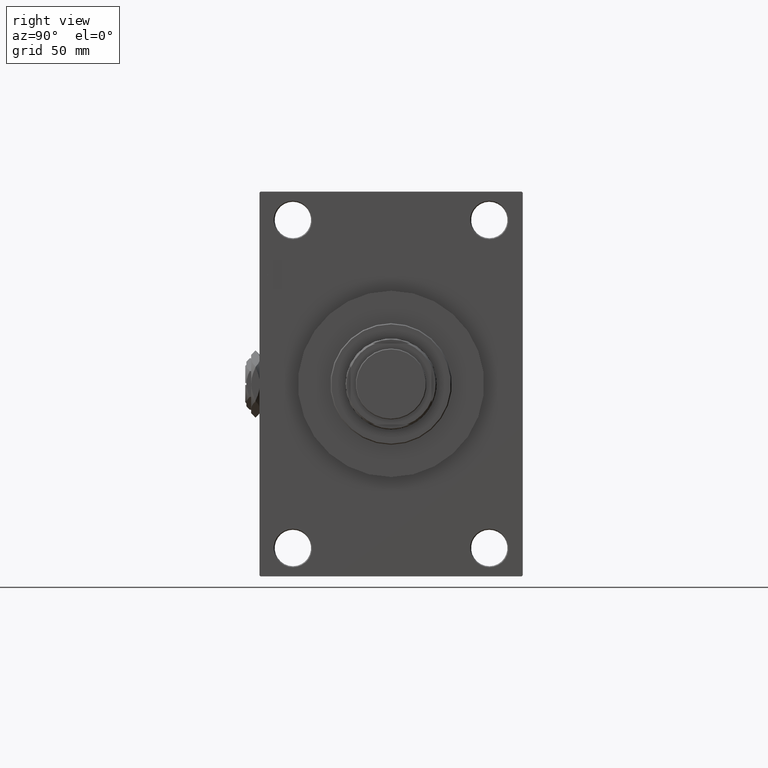
[diagram: clean part render]
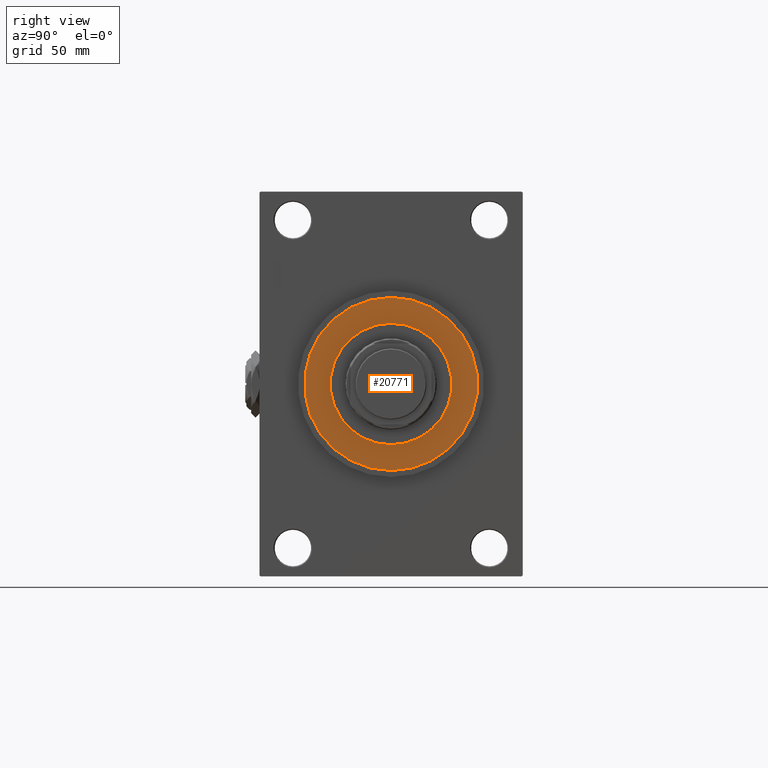
[diagram: same view with one face highlighted and labeled with its STEP entity id]
A machine part, right view. The second image highlights one B-rep face of the part: STEP entity #20771.
In plain terms, the highlighted planar face has unit normal (1, -0, -0).
Its self-contained STEP definition (entity closure, byte-faithful):
#757 = VERTEX_POINT ( 'NONE', #29943 ) ;
#986 = CARTESIAN_POINT ( 'NONE',  ( 0.000000000000000000, 0.000000000000000000, 43.25999999999999801 ) ) ;
#2650 = CIRCLE ( 'NONE', #22969, 42.75000000000000000 ) ;
#5808 = CARTESIAN_POINT ( 'NONE',  ( 0.000000000000000000, 0.000000000000000000, 43.25999999999999801 ) ) ;
#8456 = CARTESIAN_POINT ( 'NONE',  ( 42.75000000000000000, 5.235365066354935472E-15, 43.25999999999999801 ) ) ;
#14235 = CIRCLE ( 'NONE', #41008, 30.00000000000000000 ) ;
#15009 = CARTESIAN_POINT ( 'NONE',  ( 0.000000000000000000, 0.000000000000000000, 43.25999999999999801 ) ) ;
#15535 = DIRECTION ( 'NONE',  ( 1.000000000000000000, 0.000000000000000000, -0.000000000000000000 ) ) ;
#17328 = ORIENTED_EDGE ( 'NONE', *, *, #35306, .T. ) ;
#18026 = ORIENTED_EDGE ( 'NONE', *, *, #43787, .F. ) ;
#18589 = CARTESIAN_POINT ( 'NONE',  ( -42.75000000000000000, 0.000000000000000000, 43.25999999999999801 ) ) ;
#19621 = CARTESIAN_POINT ( 'NONE',  ( 30.00000000000000000, 3.673940397442059178E-15, 43.25999999999999801 ) ) ;
#20093 = FACE_OUTER_BOUND ( 'NONE', #43220, .T. ) ;
#20771 = ADVANCED_FACE ( 'NONE', ( #46024, #20093 ), #49841, .T. ) ;
#21872 = DIRECTION ( 'NONE',  ( 0.000000000000000000, 0.000000000000000000, 1.000000000000000000 ) ) ;
#22969 = AXIS2_PLACEMENT_3D ( 'NONE', #986, #47718, #46034 ) ;
#23006 = AXIS2_PLACEMENT_3D ( 'NONE', #5808, #45167, #37076 ) ;
#23075 = VERTEX_POINT ( 'NONE', #19621 ) ;
#23282 = DIRECTION ( 'NONE',  ( 1.000000000000000000, 0.000000000000000000, 0.000000000000000000 ) ) ;
#23561 = AXIS2_PLACEMENT_3D ( 'NONE', #15009, #34854, #15535 ) ;
#23770 = VERTEX_POINT ( 'NONE', #18589 ) ;
#26080 = EDGE_CURVE ( 'NONE', #23770, #30253, #2650, .T. ) ;
#29619 = ORIENTED_EDGE ( 'NONE', *, *, #37399, .F. ) ;
#29943 = CARTESIAN_POINT ( 'NONE',  ( -30.00000000000000000, 0.000000000000000000, 43.25999999999999801 ) ) ;
#30253 = VERTEX_POINT ( 'NONE', #8456 ) ;
#31644 = DIRECTION ( 'NONE',  ( 0.000000000000000000, 0.000000000000000000, 1.000000000000000000 ) ) ;
#34854 = DIRECTION ( 'NONE',  ( 0.000000000000000000, 0.000000000000000000, 1.000000000000000000 ) ) ;
#35189 = CIRCLE ( 'NONE', #23006, 42.75000000000000000 ) ;
#35306 = EDGE_CURVE ( 'NONE', #30253, #23770, #35189, .T. ) ;
#35660 = ORIENTED_EDGE ( 'NONE', *, *, #26080, .T. ) ;
#36265 = EDGE_LOOP ( 'NONE', ( #18026, #29619 ) ) ;
#37076 = DIRECTION ( 'NONE',  ( 1.000000000000000000, 0.000000000000000000, 0.000000000000000000 ) ) ;
#37399 = EDGE_CURVE ( 'NONE', #23075, #757, #49871, .T. ) ;
#37769 = CARTESIAN_POINT ( 'NONE',  ( 0.000000000000000000, 0.000000000000000000, 43.25999999999999801 ) ) ;
#38525 = AXIS2_PLACEMENT_3D ( 'NONE', #37769, #31644, #23282 ) ;
#39669 = CARTESIAN_POINT ( 'NONE',  ( 0.000000000000000000, 0.000000000000000000, 43.25999999999999801 ) ) ;
#40909 = DIRECTION ( 'NONE',  ( 1.000000000000000000, 0.000000000000000000, 0.000000000000000000 ) ) ;
#41008 = AXIS2_PLACEMENT_3D ( 'NONE', #39669, #21872, #40909 ) ;
#43220 = EDGE_LOOP ( 'NONE', ( #35660, #17328 ) ) ;
#43787 = EDGE_CURVE ( 'NONE', #757, #23075, #14235, .T. ) ;
#45167 = DIRECTION ( 'NONE',  ( 0.000000000000000000, 0.000000000000000000, 1.000000000000000000 ) ) ;
#46024 = FACE_BOUND ( 'NONE', #36265, .T. ) ;
#46034 = DIRECTION ( 'NONE',  ( 1.000000000000000000, 0.000000000000000000, 0.000000000000000000 ) ) ;
#47718 = DIRECTION ( 'NONE',  ( 0.000000000000000000, 0.000000000000000000, 1.000000000000000000 ) ) ;
#49841 = PLANE ( 'NONE',  #23561 ) ;
#49871 = CIRCLE ( 'NONE', #38525, 30.00000000000000000 ) ;